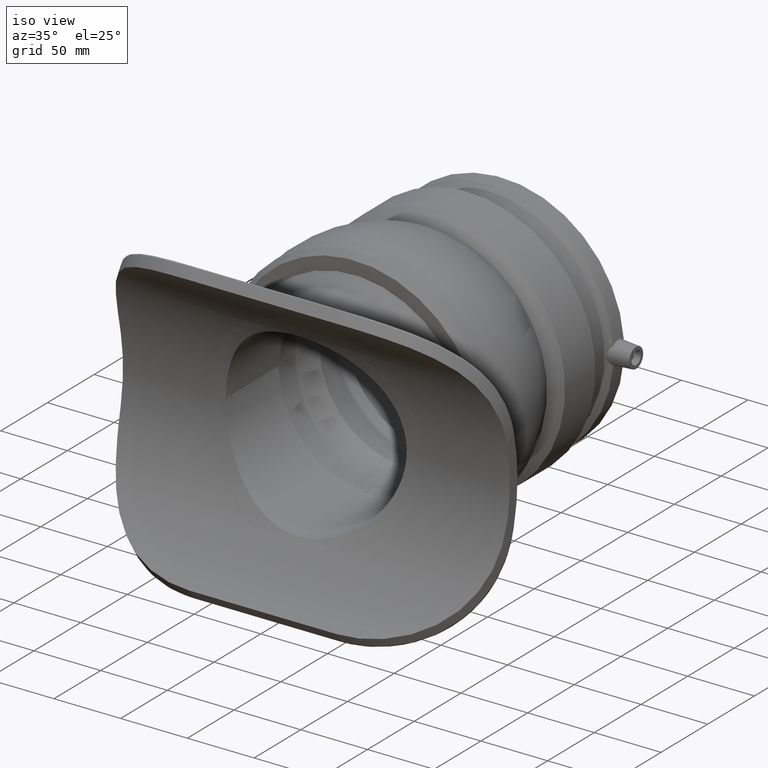
[diagram: clean part render]
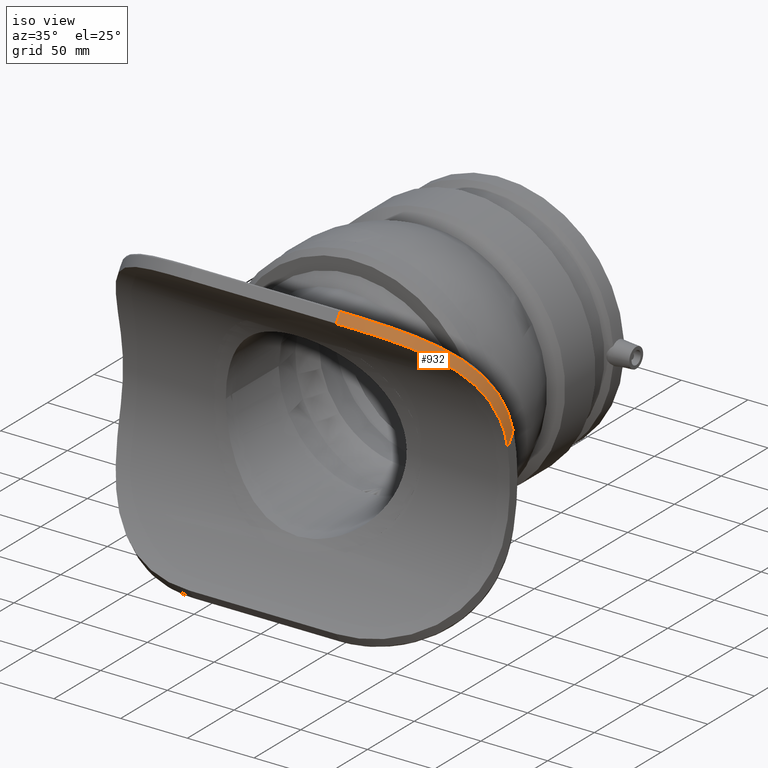
[diagram: same view with one face highlighted and labeled with its STEP entity id]
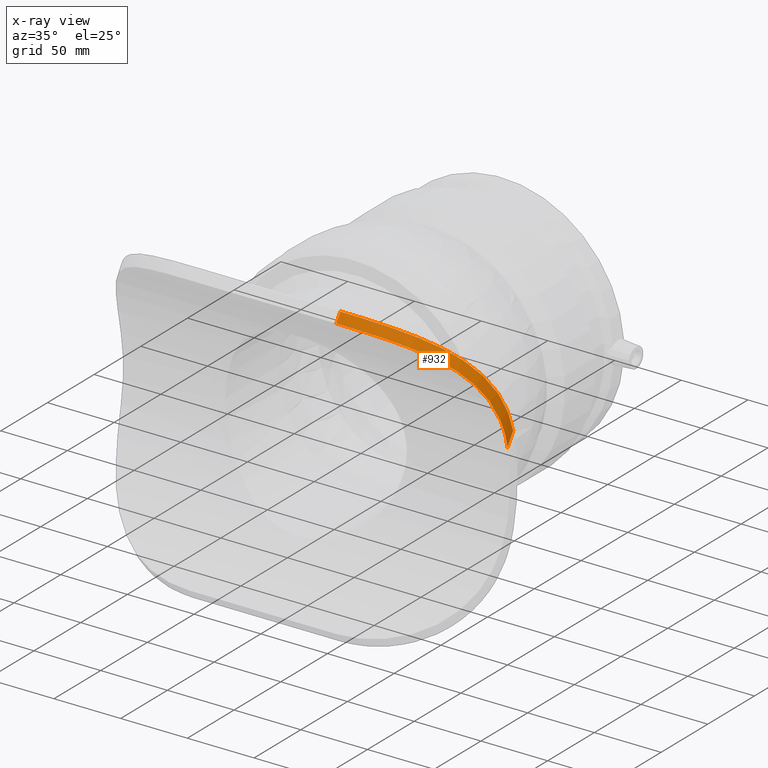
[diagram: x-ray of the same camera — body ghosted, the highlighted face saturated]
A machine part, iso view. The second image highlights one B-rep face of the part: STEP entity #932.
The next image is the same camera in x-ray: the body ghosted, the highlighted face saturated — about 0% of this face is hidden behind the body in this view.
In plain terms, the highlighted cylindrical surface (partial cylindrical patch) has radius 90 mm, axis along (0, -0.5408, -0.8411).
Its self-contained STEP definition (entity closure, byte-faithful):
#23=LINE('',#2197,#51);
#24=LINE('',#2201,#52);
#51=VECTOR('',#1251,10.9728537802587);
#52=VECTOR('',#1256,7.8469514140238);
#99=B_SPLINE_CURVE_WITH_KNOTS('',3,(#1874,#1875,#1876,#1877,#1878,#1879,
#1880,#1881,#1882,#1883),.UNSPECIFIED.,.F.,.F.,(4,1,1,1,1,1,1,4),(-14.8431934693355,
-12.7227372594304,-10.6022810495254,-8.48182483962029,-6.36136862971522,
-4.24091241981014,-2.12045620990507,0.),.UNSPECIFIED.);
#108=B_SPLINE_CURVE_WITH_KNOTS('',3,(#2202,#2203,#2204,#2205,#2206,#2207,
#2208,#2209,#2210,#2211,#2212,#2213,#2214,#2215,#2216,#2217,#2218,#2219,
#2220,#2221),.UNSPECIFIED.,.F.,.F.,(4,2,2,2,2,2,2,2,2,4),(30.1818136976187,
32.3621467370929,34.542479776567,36.7228128160412,38.9031458555153,40.0341893095497,
41.1652327635841,42.2962762176185,43.4273196716529,44.8701908916101),
 .UNSPECIFIED.);
#184=CYLINDRICAL_SURFACE('',#1042,90.);
#239=FACE_OUTER_BOUND('',#338,.T.);
#338=EDGE_LOOP('',(#752,#753,#754,#755));
#460=VERTEX_POINT('',#1871);
#461=VERTEX_POINT('',#1873);
#478=VERTEX_POINT('',#2196);
#479=VERTEX_POINT('',#2200);
#549=EDGE_CURVE('',#460,#461,#99,.T.);
#577=EDGE_CURVE('',#478,#461,#23,.T.);
#579=EDGE_CURVE('',#460,#479,#24,.T.);
#580=EDGE_CURVE('',#479,#478,#108,.T.);
#752=ORIENTED_EDGE('',*,*,#549,.F.);
#753=ORIENTED_EDGE('',*,*,#579,.T.);
#754=ORIENTED_EDGE('',*,*,#580,.T.);
#755=ORIENTED_EDGE('',*,*,#577,.T.);
#932=ADVANCED_FACE('',(#239),#184,.T.);
#1042=AXIS2_PLACEMENT_3D('',#2199,#1254,#1255);
#1251=DIRECTION('',(0.,0.540846216681506,0.841121495327103));
#1254=DIRECTION('center_axis',(0.,-0.540846216681506,-0.841121495327103));
#1255=DIRECTION('ref_axis',(0.707106781186548,-0.594762713147563,0.382436027394582));
#1256=DIRECTION('',(0.,-0.540846216681506,-0.841121495327103));
#1871=CARTESIAN_POINT('',(55.,-93.5502289300534,111.740426423011));
#1873=CARTESIAN_POINT('',(145.,-36.8477831669138,33.517906368077));
#1874=CARTESIAN_POINT('Ctrl Pts',(55.,-93.5502289300534,111.740426423011));
#1875=CARTESIAN_POINT('Ctrl Pts',(62.1395831983336,-93.5502289300534,111.740426423011));
#1876=CARTESIAN_POINT('Ctrl Pts',(76.4192129270864,-92.111981201768,110.820454910043));
#1877=CARTESIAN_POINT('Ctrl Pts',(96.6313190753384,-85.9158076687292,106.520473364132));
#1878=CARTESIAN_POINT('Ctrl Pts',(114.469825493347,-76.4708048559216,98.8764980616355));
#1879=CARTESIAN_POINT('Ctrl Pts',(128.819687285359,-65.0655608050885,87.4457182718026));
#1880=CARTESIAN_POINT('Ctrl Pts',(138.761012120114,-53.4454552307531,72.1866205703944));
#1881=CARTESIAN_POINT('Ctrl Pts',(144.080270511063,-43.4403322509592,53.8521901286951));
#1882=CARTESIAN_POINT('Ctrl Pts',(145.,-38.6752514097003,40.3858364862842));
#1883=CARTESIAN_POINT('Ctrl Pts',(145.,-36.8477831669138,33.517906368077));
#2196=CARTESIAN_POINT('',(145.,-42.7824096201661,24.2884031884201));
#2197=CARTESIAN_POINT('',(145.,-37.8322449975472,31.9868759540057));
#2199=CARTESIAN_POINT('Origin',(55.,-37.8322449975472,31.9868759540057));
#2200=CARTESIAN_POINT('',(55.,-97.7942229148117,105.140186915888));
#2201=CARTESIAN_POINT('',(55.,-113.533179576986,80.6630354553412));
#2202=CARTESIAN_POINT('Ctrl Pts',(55.,-97.7942229148117,105.140186915888));
#2203=CARTESIAN_POINT('Ctrl Pts',(62.2677767982472,-97.7942229148117,105.140186915888));
#2204=CARTESIAN_POINT('Ctrl Pts',(69.6992795341315,-97.036778101603,104.665181466056));
#2205=CARTESIAN_POINT('Ctrl Pts',(84.2069163173403,-94.0104816863937,102.624884873931));
#2206=CARTESIAN_POINT('Ctrl Pts',(91.2832477468966,-91.7439061648794,101.057622318261));
#2207=CARTESIAN_POINT('Ctrl Pts',(104.4710139425,-86.0707135590273,96.6681307382873));
#2208=CARTESIAN_POINT('Ctrl Pts',(110.59928929932,-82.6592123603116,93.8341936471869));
#2209=CARTESIAN_POINT('Ctrl Pts',(121.431928092721,-75.3058817774638,86.7982932304398));
#2210=CARTESIAN_POINT('Ctrl Pts',(126.134839713175,-71.368663464976,82.5892781478525));
#2211=CARTESIAN_POINT('Ctrl Pts',(132.005044257946,-65.5529407364389,75.2712331910956));
#2212=CARTESIAN_POINT('Ctrl Pts',(133.879620170565,-63.500399032925,72.4890317606754));
#2213=CARTESIAN_POINT('Ctrl Pts',(137.201403476322,-59.4638241859268,66.4508469271108));
#2214=CARTESIAN_POINT('Ctrl Pts',(138.648980184049,-57.4807823771671,63.1944040346853));
#2215=CARTESIAN_POINT('Ctrl Pts',(141.058441213241,-53.765036111694,56.3713158894403));
#2216=CARTESIAN_POINT('Ctrl Pts',(142.02255804067,-52.030918233186,52.8008437210258));
#2217=CARTESIAN_POINT('Ctrl Pts',(143.503236019198,-48.9349359278698,45.5671663558428));
#2218=CARTESIAN_POINT('Ctrl Pts',(144.021011762505,-47.5732686983797,41.9041254304049));
#2219=CARTESIAN_POINT('Ctrl Pts',(144.808202574666,-44.9534304768039,33.7721946786565));
#2220=CARTESIAN_POINT('Ctrl Pts',(145.,-43.730809082212,29.0763036465717));
#2221=CARTESIAN_POINT('Ctrl Pts',(145.,-42.7824096201661,24.2884031884201));